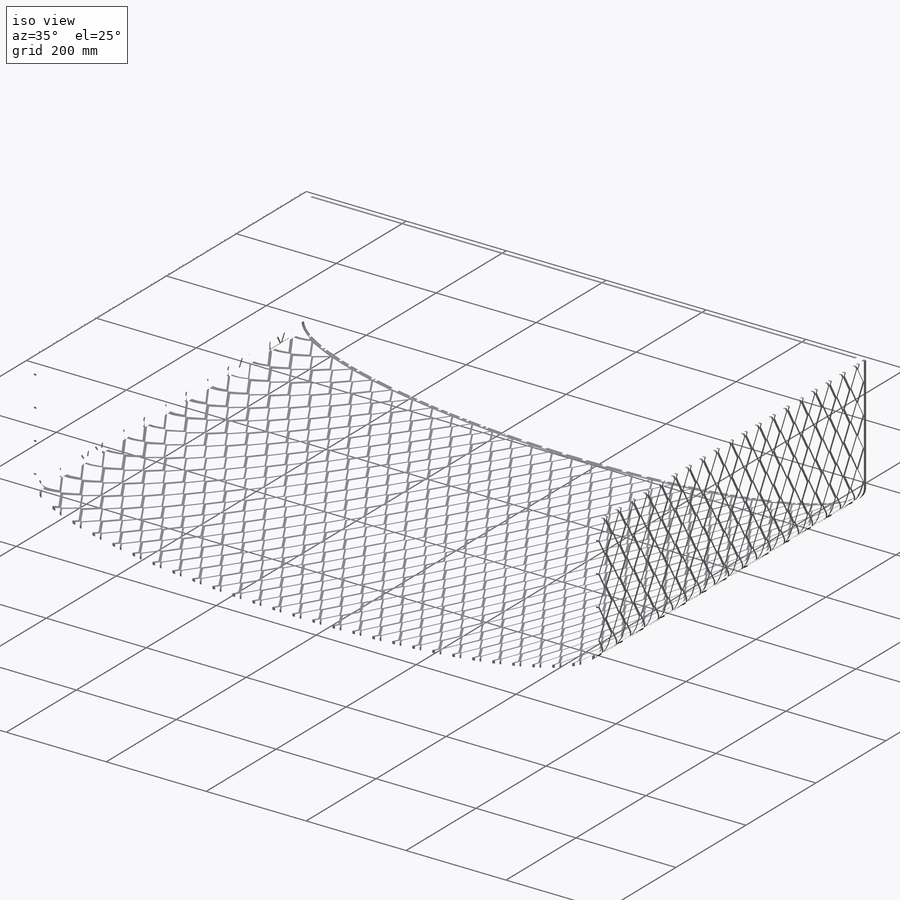
[diagram: iso view]
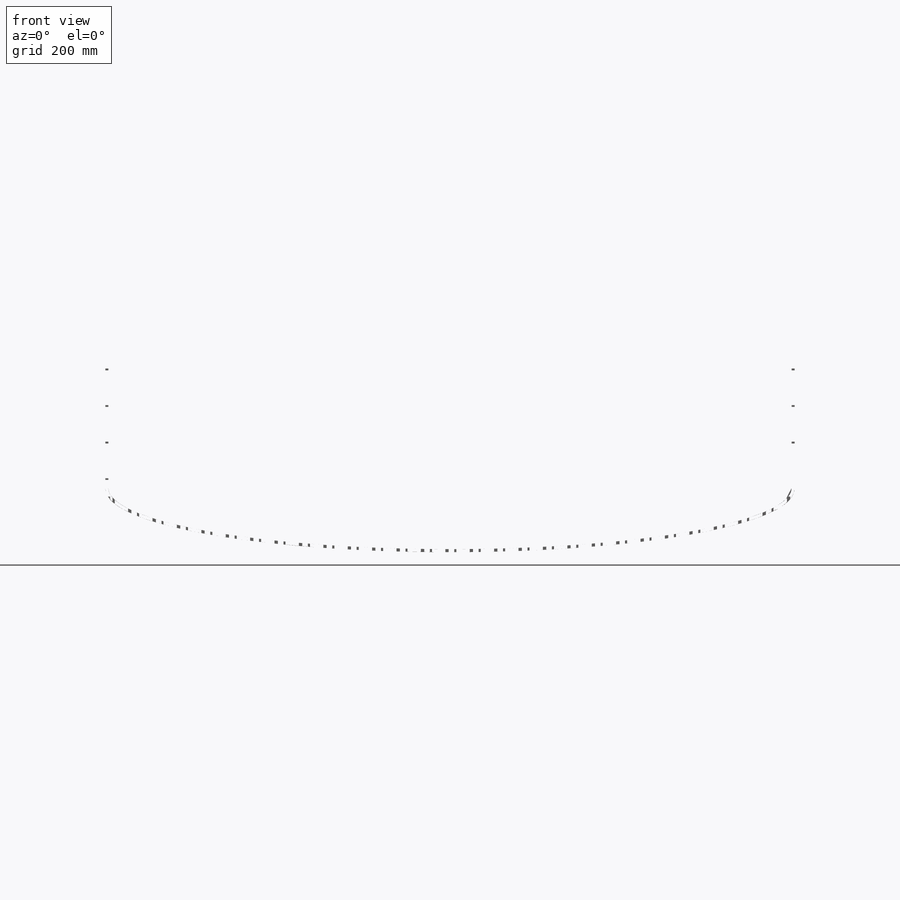
[diagram: front view]
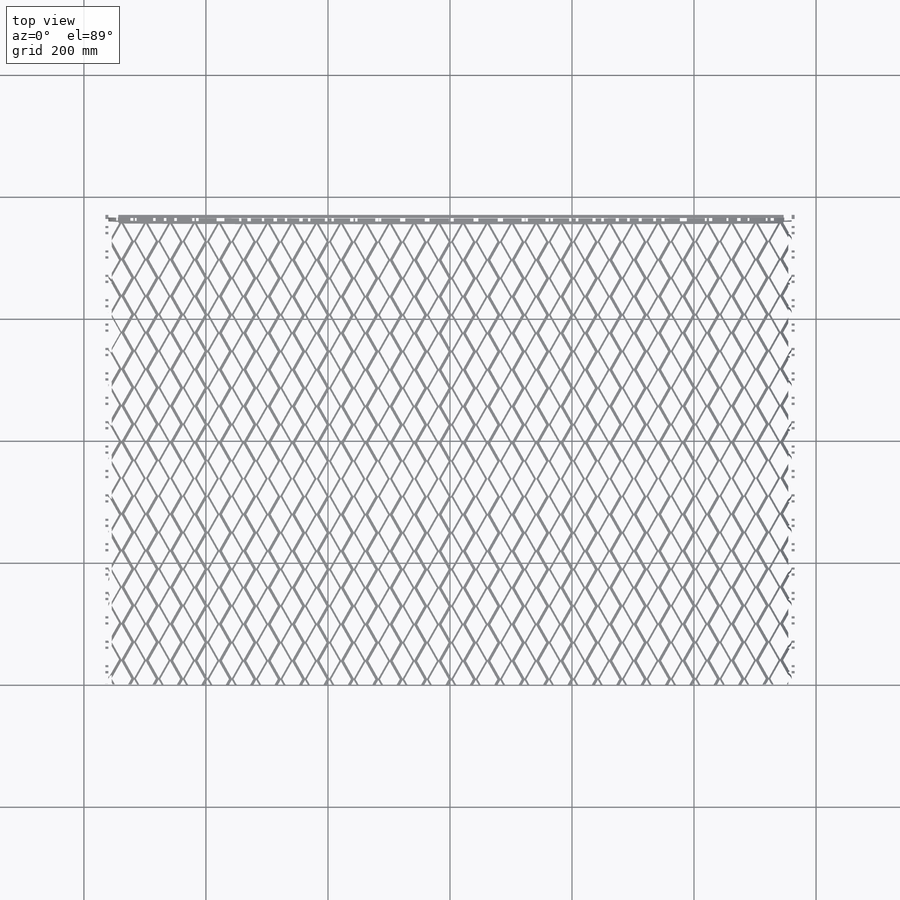
[diagram: top view]
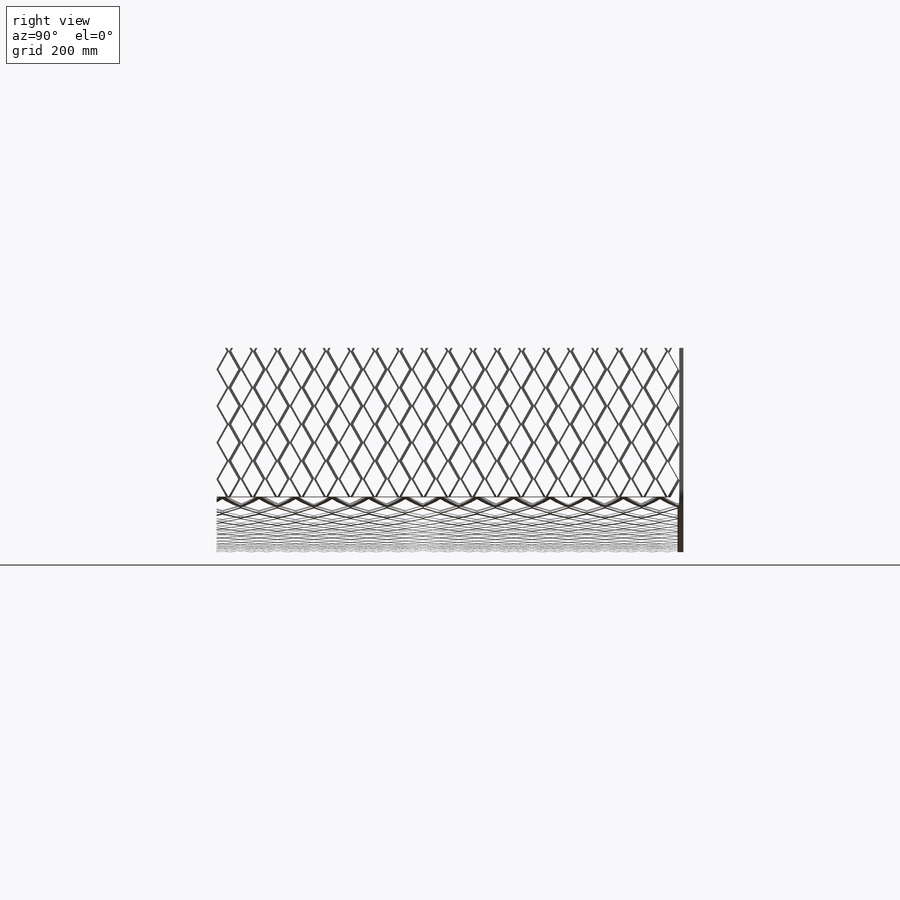
[diagram: right view]
SOLIDWORKS PART (.sldprt)
format: sldprt  version: not decoded by parser v0  size: 7,982,080 bytes
history: native  units: mm
features: sketch x8, cut_extrude x6, extrude x2, material x1 (+12 scaffold rows collapsed)
feature tree (29):
  scaffold x12  (default folders/planes/origin — collapsed)
  material  "Material <not specified>"
  sketch  "Sketch1"  dims[D1=230.0mm D2=230.0mm D4=5.0mm D3=5.0mm]
  extrude  "Boss-Extrude1"  Depth=760mm
  sketch  "Sketch2"  dims[D1=1130.0mm]
  extrude  "Boss-Extrude2"  Depth=5mm
  sketch  "Sketch3"  dims[c1.D1=32.5mm c1.D14=32.5mm c1.D16=40.0mm c1.D18=40.0mm c1.D20=40.0mm c1.D22=40.0mm c1.D24=40.0mm c1.D26=40.0mm c1.D28=40.0mm c1.D30=60.0mm c1.D32=40.0mm c1.D34=35.0mm c1.D36=60.0mm c1.D38=40.0mm c1.D40=60.0mm c1.D42=40.0mm c1.D43=~20.968413mm c1.D2=28.0 c1.D3=2.0 c1.D4=4.0 c1.D5=2.0 c1.D6=2.0 c1.D7=2.0 c1.D8=2.0 c1.D9=5.0 c1.D10=2.0 c1.D11=4.0 c1.D12=2.0 c1.D13=2.0 c2.D14=27.0 c2.D15=5.0 c2.D17=11.0 c2.D19=2.0 c2.D21=2.0 c2.D23=11.0 c2.D25=2.0 c2.D27=5.0 c2.D29=2.0 c2.D31=18.0 c2.D33=2.0 c2.D35=4.0 c2.D37=2.0 c2.D39=4.0 c2.D41=2.0]
  cut_extrude  "Cut-Extrude1"  Depth=10mm
  sketch  "Sketch4"  dims[c1.D1=32.5mm c1.D2=40.0mm c1.D3=40.0mm c1.D4=40.0mm c1.D5=40.0mm c1.D6=40.0mm c1.D7=40.0mm c1.D8=40.0mm c1.D9=60.0mm c1.D10=40.0mm c1.D11=35.0mm c1.D12=60.0mm c1.D13=40.0mm c1.D14=60.0mm c1.D15=40.0mm c2.D2=32.5mm]
  cut_extrude  "Cut-Extrude2"  [1 undecoded]
  sketch  "Sketch5"  dims[D2=35.0mm D1=~99.277561mm]
  cut_extrude  "Cut-Extrude3"  [1 undecoded]
  sketch  "Sketch7"  dims[D2=59.5mm]
  cut_extrude  "Cut-Extrude4"  [1 undecoded]
  sketch  "Sketch8"  dims[D1=32.5mm D2=40.0mm D3=40.0mm D4=40.0mm D5=40.0mm D6=40.0mm D7=40.0mm D8=40.0mm D9=60.0mm D10=40.0mm D11=35.0mm D12=60.0mm D13=40.0mm D14=60.0mm D15=40.0mm]
  cut_extrude  "Cut-Extrude5"  [1 undecoded]
  sketch  "Sketch9"  dims[D2=60.0mm D4=60.0mm D5=~2.331168mm D1=2.0 D3=4.0]
  cut_extrude  "Cut-Extrude6"  [1 undecoded]
decode coverage: 11 of 16 modeling features carry decoded parameters
note: ~ marks probable driven/reference dimensions
note: 5 parameter values undecoded
summary: no parameter record found for 5 features
note: suppression state not decoded; provenance and decode notes live in map.json
